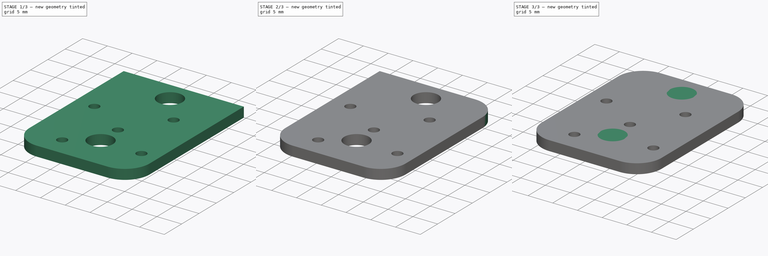
[diagram: build sequence overview — one tinted view per stage of 3, left to right]
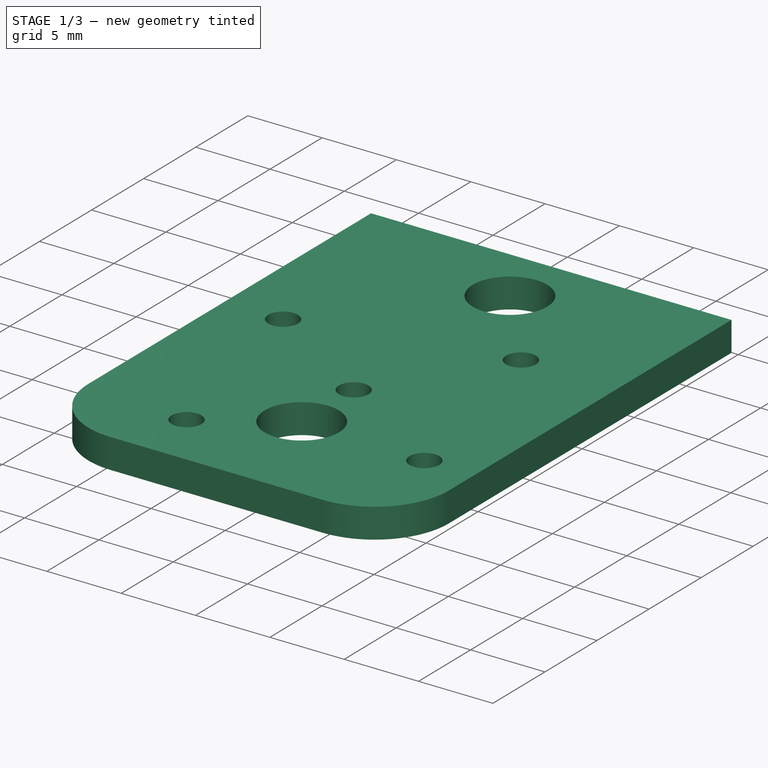
[diagram: stage 1 of 3 — iso view after this stage's code; geometry added in this stage tinted green]
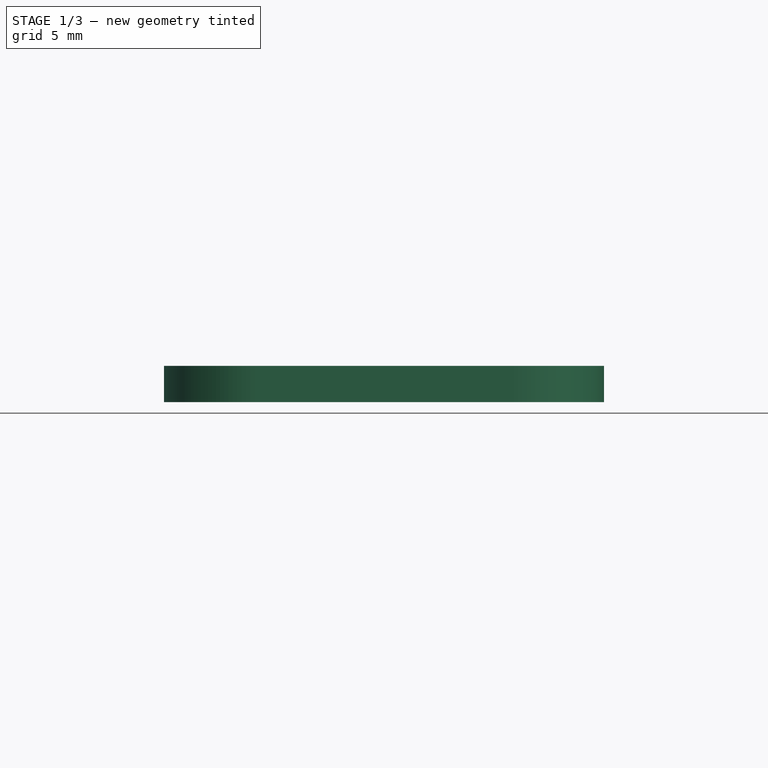
[diagram: stage 1 of 3 — front view after this stage's code; geometry added in this stage tinted green]
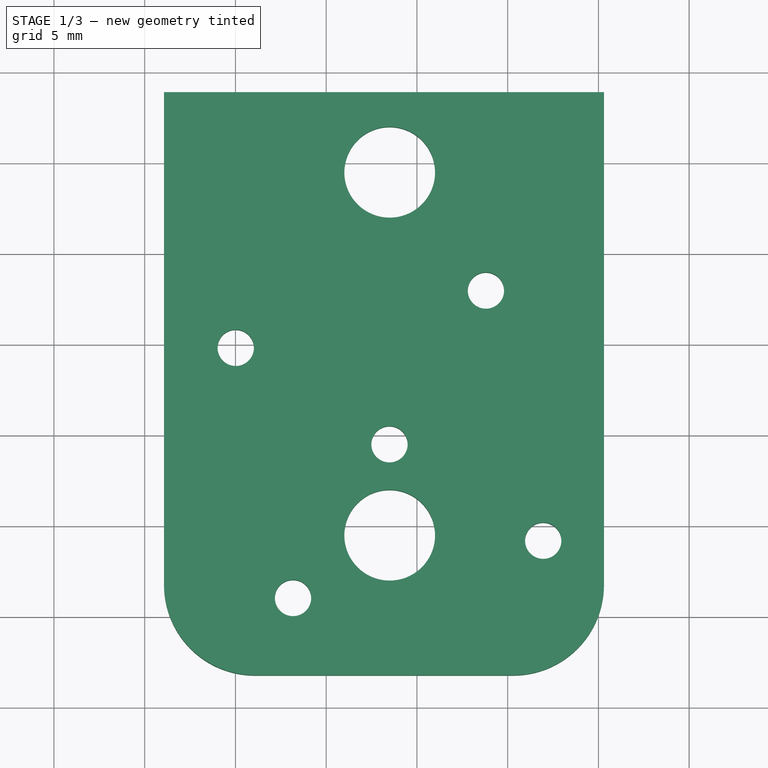
[diagram: stage 1 of 3 — top view after this stage's code; geometry added in this stage tinted green]
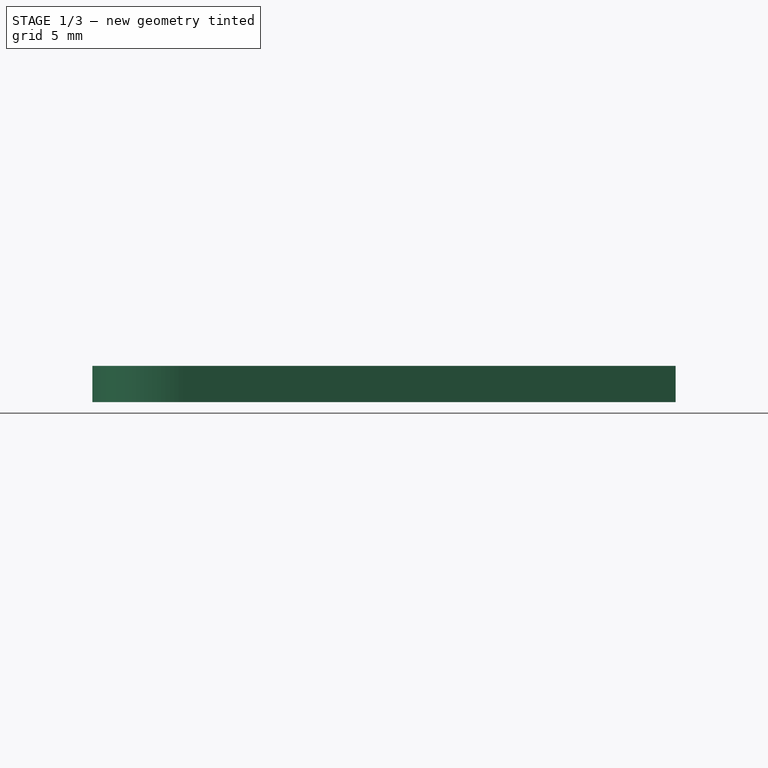
[diagram: stage 1 of 3 — right view after this stage's code; geometry added in this stage tinted green]
FCSTD DOCUMENT  (FreeCAD 0.19R24276 (Git))
Label: Bar_60x140__1_8mm_for_kern
License: All rights reserved
LicenseURL: http://en.wikipedia.org/wiki/All_rights_reserved
objects: Sketcher::SketchObject×3, PartDesign::Fillet×3, PartDesign::Pad×2, PartDesign::Body×1
note: 14 computed .brp shape members not serialized (recipe doc carries the construction recipe); baked Part::Feature solids carry a one-line shape summary decoded from their .brp

FEATURE [Sketcher::SketchObject] Sketch
  FullyConstrained = false
  MapMode = 5
  Support = -> [XY_Plane]
  sketch-geometry (48):
    g0: LineSegment StartX=0 StartY=0 StartZ=0 EndX=120 EndY=0 EndZ=0
    g1: LineSegment StartX=120 StartY=0 StartZ=0 EndX=120 EndY=80 EndZ=0
    g2: LineSegment StartX=120 StartY=80 StartZ=0 EndX=0 EndY=80 EndZ=0
    g3: LineSegment StartX=0 StartY=80 StartZ=0 EndX=0 EndY=0 EndZ=0
    g4: LineSegment StartX=0 StartY=4.5 StartZ=0 EndX=120 EndY=4.5 EndZ=0
    g5: LineSegment StartX=0 StartY=24.5 StartZ=0 EndX=120 EndY=24.5 EndZ=0
    g6: LineSegment StartX=0 StartY=44.5 StartZ=0 EndX=120 EndY=44.5 EndZ=0
    g7: LineSegment StartX=0 StartY=64.5 StartZ=0 EndX=120 EndY=64.5 EndZ=0
    g8: LineSegment StartX=48.5 StartY=0 StartZ=0 EndX=48.5 EndY=4.5 EndZ=0
    g9: LineSegment StartX=68.5 StartY=0 StartZ=0 EndX=68.5 EndY=4.5 EndZ=0
    g10: LineSegment StartX=88.5 StartY=0 StartZ=0 EndX=88.5 EndY=4.5 EndZ=0
    g11: LineSegment StartX=108.5 StartY=0 StartZ=0 EndX=108.5 EndY=4.5 EndZ=0
    g12: LineSegment StartX=0 StartY=14.5 StartZ=0 EndX=120 EndY=14.5 EndZ=0
    g13: LineSegment StartX=0 StartY=34.5 StartZ=0 EndX=120 EndY=34.5 EndZ=0
    g14: LineSegment StartX=0 StartY=54.5 StartZ=0 EndX=120 EndY=54.5 EndZ=0
    g15: LineSegment StartX=0 StartY=74.5 StartZ=0 EndX=120 EndY=74.5 EndZ=0
    g16: LineSegment StartX=48.5 StartY=24.5 StartZ=0 EndX=48.5 EndY=80 EndZ=0
    g17: LineSegment StartX=68.5 StartY=14.5 StartZ=0 EndX=68.5 EndY=80 EndZ=0
    g18: LineSegment StartX=88.5 StartY=24.5 StartZ=0 EndX=88.5 EndY=80 EndZ=0
    g19: LineSegment StartX=108.5 StartY=14.5 StartZ=0 EndX=108.5 EndY=80 EndZ=0
    g20: Circle CenterX=28.5 CenterY=14.5 CenterZ=0 NormalX=0 NormalY=0 NormalZ=1 AngleXU=0 Radius=2.5
    g21: Circle CenterX=108.5 CenterY=14.5 CenterZ=0 NormalX=0 NormalY=0 NormalZ=1 AngleXU=0 Radius=2.5
    g22: Circle CenterX=8.5 CenterY=24.5 CenterZ=0 NormalX=0 NormalY=0 NormalZ=1 AngleXU=0 Radius=2.5
    g23: Circle CenterX=48.5 CenterY=24.5 CenterZ=0 NormalX=0 NormalY=0 NormalZ=1 AngleXU=0 Radius=2.5
    g24: Circle CenterX=88.5 CenterY=24.5 CenterZ=0 NormalX=0 NormalY=0 NormalZ=1 AngleXU=0 Radius=2.5
    g25: Circle CenterX=8.5 CenterY=44.5 CenterZ=0 NormalX=0 NormalY=0 NormalZ=1 AngleXU=0 Radius=2.5
    g26: Circle CenterX=48.5 CenterY=44.5 CenterZ=0 NormalX=0 NormalY=0 NormalZ=1 AngleXU=0 Radius=2.5
    g27: Circle CenterX=88.5 CenterY=44.5 CenterZ=0 NormalX=0 NormalY=0 NormalZ=1 AngleXU=0 Radius=2.5
    g28: Circle CenterX=28.5 CenterY=54.5 CenterZ=0 NormalX=0 NormalY=0 NormalZ=1 AngleXU=0 Radius=2.5
    g29: Circle CenterX=68.5 CenterY=54.5 CenterZ=0 NormalX=0 NormalY=0 NormalZ=1 AngleXU=0 Radius=2.5
    g30: Circle CenterX=108.5 CenterY=54.5 CenterZ=0 NormalX=0 NormalY=0 NormalZ=1 AngleXU=0 Radius=2.5
    g31: Circle CenterX=88.5 CenterY=64.5 CenterZ=0 NormalX=0 NormalY=0 NormalZ=1 AngleXU=0 Radius=2.5
    g32: Circle CenterX=48.5 CenterY=64.5 CenterZ=0 NormalX=0 NormalY=0 NormalZ=1 AngleXU=0 Radius=2.5
    g33: Circle CenterX=8.5 CenterY=64.5 CenterZ=0 NormalX=0 NormalY=0 NormalZ=1 AngleXU=0 Radius=2.5
    g34: Circle CenterX=28.5 CenterY=34.5 CenterZ=0 NormalX=0 NormalY=0 NormalZ=1 AngleXU=0 Radius=2.5
    g35: Circle CenterX=68.5 CenterY=34.5 CenterZ=0 NormalX=0 NormalY=0 NormalZ=1 AngleXU=0 Radius=2.5
    g36: Circle CenterX=108.5 CenterY=34.5 CenterZ=0 NormalX=0 NormalY=0 NormalZ=1 AngleXU=0 Radius=2.5
    g37: LineSegment StartX=28.5 StartY=74.5 StartZ=0 EndX=28.5 EndY=14.5 EndZ=0
    g38: LineSegment StartX=8.5 StartY=4.5 StartZ=0 EndX=8.5 EndY=24.5 EndZ=0
    g39: Circle CenterX=68.5 CenterY=14.5 CenterZ=0 NormalX=0 NormalY=0 NormalZ=1 AngleXU=0 Radius=2.5
    g40: LineSegment StartX=-1.5 StartY=9.5 StartZ=0 EndX=138.5 EndY=9.5 EndZ=0
    g41: LineSegment StartX=-1.5 StartY=69.5 StartZ=0 EndX=138.5 EndY=69.5 EndZ=0
    g42: LineSegment StartX=-1.5 StartY=69.5 StartZ=0 EndX=-1.5 EndY=9.5 EndZ=0
    g43: LineSegment StartX=138.5 StartY=69.5 StartZ=0 EndX=138.5 EndY=9.5 EndZ=0
    g44: Circle CenterX=128.5 CenterY=24.5 CenterZ=0 NormalX=0 NormalY=0 NormalZ=1 AngleXU=0 Radius=2.5
    g45: Circle CenterX=128.5 CenterY=44.5 CenterZ=0 NormalX=0 NormalY=0 NormalZ=1 AngleXU=0 Radius=2.5
    g46: Circle CenterX=128.5 CenterY=64.5 CenterZ=0 NormalX=0 NormalY=0 NormalZ=1 AngleXU=0 Radius=2.5
    g47: Circle CenterX=68.5 CenterY=39.5 CenterZ=0 NormalX=0 NormalY=0 NormalZ=1 AngleXU=0 Radius=1.5
  constraints (103):
    c: Coincident(g0,g1)
    c: Coincident(g1,g2)
    c: Coincident(g2,g3)
    c: Coincident(g3,g0)
    c: Horizontal(g0)
    c: Horizontal(g2)
    c: Vertical(g1)
    c: Vertical(g3)
    c: Coincident(g0,g-1)
    c: DistanceX(g0,g0) = 120
    c: DistanceY(g3,g3) = 80
    c: Horizontal(g4)
    c: PointOnObject(g4,g3)
    c: PointOnObject(g4,g1)
    c: Horizontal(g5)
    c: PointOnObject(g5,g3)
    c: PointOnObject(g5,g1)
    c: DistanceY(g4,g5) = 20
    c: Horizontal(g6)
    c: PointOnObject(g6,g1)
    c: PointOnObject(g6,g3)
    c: DistanceY(g5,g6) = 20
    c: Horizontal(g7)
    c: PointOnObject(g7,g1)
    c: PointOnObject(g7,g3)
    c: DistanceY(g6,g7) = 20
    c: Vertical(g8)
    c: Vertical(g9)
    c: Vertical(g10)
    c: Vertical(g11)
    c: PointOnObject(g8,g0)
    c: PointOnObject(g9,g0)
    c: PointOnObject(g10,g0)
    c: PointOnObject(g11,g0)
    c: PointOnObject(g19,g2)
    c: PointOnObject(g18,g2)
    c: PointOnObject(g17,g2)
    c: PointOnObject(g16,g2)
    c: DistanceX(g8,g9) = 20
    c: DistanceX(g9,g10) = 20
    c: DistanceX(g10,g11) = 20
    c: Horizontal(g12)
    c: Horizontal(g13)
    c: Horizontal(g14)
    c: Horizontal(g15)
    c: PointOnObject(g12,g3)
    c: PointOnObject(g13,g3)
    c: PointOnObject(g14,g3)
    c: PointOnObject(g15,g3)
    c: PointOnObject(g15,g1)
    c: PointOnObject(g14,g1)
    c: PointOnObject(g13,g1)
    c: PointOnObject(g12,g1)
    c: DistanceY(g0,g12) = 14.5
    c: DistanceY(g12,g13) = 20
    c: DistanceY(g13,g14) = 20
    c: DistanceY(g14,g15) = 20
    c: PointOnObject(g20,g12)
    c: PointOnObject(g8,g4)
    c: Tangent(g8,g16)
    c: PointOnObject(g9,g4)
    c: PointOnObject(g17,g12)
    c: Tangent(g9,g17)
    c: PointOnObject(g10,g4)
    c: Tangent(g10,g18)
    c: PointOnObject(g11,g4)
    c: PointOnObject(g19,g12)
    c: Tangent(g11,g19)
    c: Coincident(g21,g19)
    c: Diameter(g20) = 5
    c: PointOnObject(g16,g5)
    c: PointOnObject(g18,g5)
    c: Equal(g23,g24)
    c: Equal(g33,g28)
    c: Equal(g28,g32)
    c: Equal(g32,g31)
    c: Equal(g31,g30)
    c: Diameter(g28) = 5
    c: Equal(g31,g29)
    c: Equal(g26,g27)
    c: Diameter(g34) = 5
    c: Coincident(g37,g20)
    c: Vertical(g37)
    c: DistanceY(g0,g4) = 4.5
    c: Coincident(g38,g22)
    c: Vertical(g38)
    c: Coincident(g39,g17)
    c: Equal(g21,g39)
    c: Horizontal(g40)
    c: Horizontal(g41)
    c: Vertical(g42)
    c: DistanceX(g0,g38) = 8.5
    c: Coincident(g42,g40)
    c: Coincident(g41,g42)
    c: Vertical(g43)
    c: DistanceX(g40,g38) = 10
    c: Coincident(g40,g43)
    c: DistanceY(g40,g21) = 5
    c: Coincident(g41,g43)
    c: DistanceY(g40,g41) = 60
    c: Symmetric(g40,g41,g47)
    c: Diameter(g47) = 3
    c: DistanceX(g41,g41) = 140
FEATURE [Sketcher::SketchObject] Sketch001
  FullyConstrained = false
  MapMode = 5
  Placement = pos=(0,0,1.8) rot=(0,0,1;0rad)
  sketch-geometry (18):
    g0: Circle CenterX=68.4882 CenterY=39.5 CenterZ=0 NormalX=0 NormalY=0 NormalZ=1 AngleXU=0 Radius=1
    g1: LineSegment StartX=73.8024 StartY=47.9711 StartZ=0 EndX=60.0171 EndY=44.8142 EndZ=0
    g2: LineSegment StartX=60.0171 StartY=44.8142 StartZ=0 EndX=63.1739 EndY=31.0289 EndZ=0
    g3: LineSegment StartX=63.1739 StartY=31.0289 StartZ=0 EndX=76.9592 EndY=34.1858 EndZ=0
    g4: LineSegment StartX=76.9592 StartY=34.1858 StartZ=0 EndX=73.8024 EndY=47.9711 EndZ=0
    g5: Circle CenterX=68.4882 CenterY=39.5 CenterZ=0 NormalX=0 NormalY=0 NormalZ=1 AngleXU=0 Radius=10
    g6: LineSegment StartX=60.0171 StartY=44.8142 StartZ=0 EndX=76.9592 EndY=34.1858 EndZ=0
    g7: Circle CenterX=73.8024 CenterY=47.9711 CenterZ=0 NormalX=0 NormalY=0 NormalZ=1 AngleXU=0 Radius=1
    g8: Circle CenterX=60.0171 CenterY=44.8142 CenterZ=0 NormalX=0 NormalY=0 NormalZ=1 AngleXU=0 Radius=1
    g9: Circle CenterX=63.1739 CenterY=31.0289 CenterZ=0 NormalX=0 NormalY=0 NormalZ=1 AngleXU=0 Radius=1
    g10: Circle CenterX=76.9592 CenterY=34.1858 CenterZ=0 NormalX=0 NormalY=0 NormalZ=1 AngleXU=0 Radius=1
    g11: Circle CenterX=68.4998 CenterY=34.489 CenterZ=0 NormalX=0 NormalY=0 NormalZ=1 AngleXU=0 Radius=2.5
    g12: LineSegment StartX=56.0652 StartY=58.9033 StartZ=0 EndX=80.307 EndY=58.9033 EndZ=0
    g13: LineSegment StartX=80.307 StartY=58.9033 StartZ=0 EndX=80.307 EndY=26.7715 EndZ=0
    g14: LineSegment StartX=80.307 StartY=26.7715 StartZ=0 EndX=56.0652 EndY=26.7715 EndZ=0
    g15: LineSegment StartX=56.0652 StartY=26.7715 StartZ=0 EndX=56.0652 EndY=58.9033 EndZ=0
    g16: Circle CenterX=68.4998 CenterY=54.489 CenterZ=0 NormalX=0 NormalY=0 NormalZ=1 AngleXU=0 Radius=2.5
    g17: LineSegment StartX=68.4998 StartY=34.489 StartZ=0 EndX=68.4998 EndY=54.489 EndZ=0
  constraints (39):
    c: DistanceY(g-1,g0) = 39.5
    c: Coincident(g1,g2)
    c: Coincident(g2,g3)
    c: Coincident(g3,g4)
    c: Coincident(g4,g1)
    c: Equal(g1,g2)
    c: Equal(g1,g3)
    c: Equal(g1,g4)
    c: PointOnObject(g1,g5)
    c: PointOnObject(g2,g5)
    c: PointOnObject(g3,g5)
    c: PointOnObject(g4,g5)
    c: Coincident(g5,g0)
    c: Diameter(g5) = 20
    c: Coincident(g6,g1)
    c: Coincident(g6,g3)
    c: Coincident(g7,g1)
    c: Coincident(g8,g1)
    c: Coincident(g9,g2)
    c: Coincident(g10,g3)
    c: Diameter(g7) = 2
    c: Equal(g7,g8)
    c: Equal(g7,g9)
    c: Equal(g7,g10)
    c: Diameter(g0) = 2
    c: Diameter(g11) = 5
    c: Coincident(g12,g13)
    c: Coincident(g13,g14)
    c: Coincident(g14,g15)
    c: Coincident(g15,g12)
    c: Horizontal(g12)
    c: Horizontal(g14)
    c: Vertical(g13)
    c: Vertical(g15)
    c: Equal(g16,g11)
    c: DistanceY(g11,g16) = 20
    c: Coincident(g17,g16)
    c: Vertical(g17)
    c: Coincident(g17,g11)
FEATURE [PartDesign::Pad] Pad
  Direction = (1,1,1)
  Length = 2
  Length2 = 100
  Placement = pos=(0,0,1.8) rot=(0,0,1;0rad)
  Profile = -> Sketch001
  Type = 0
FEATURE [PartDesign::Fillet] Fillet
  Base = -> Pad [Edge8,Edge5]
  BaseFeature = -> Pad
  Placement = pos=(0,0,1.8) rot=(0,0,1;0rad)
  Radius = 5
  SupportTransform = false
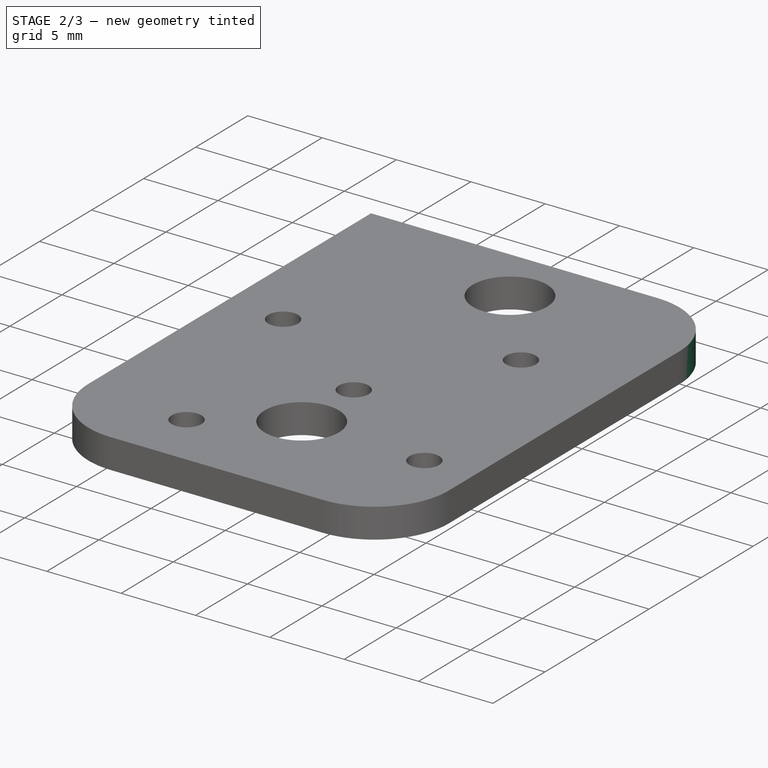
[diagram: stage 2 of 3 — iso view after this stage's code; geometry added in this stage tinted green]
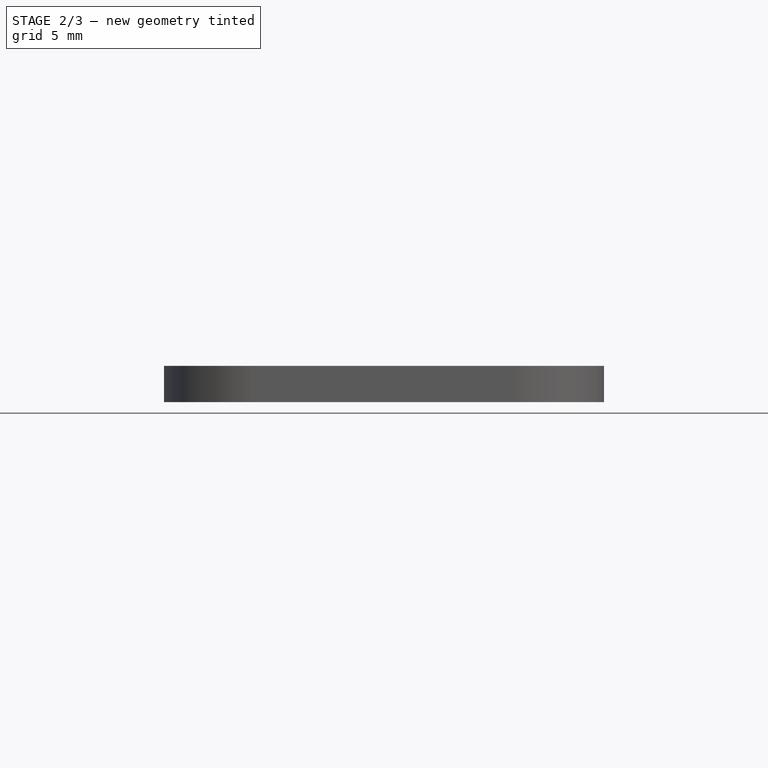
[diagram: stage 2 of 3 — front view after this stage's code; geometry added in this stage tinted green]
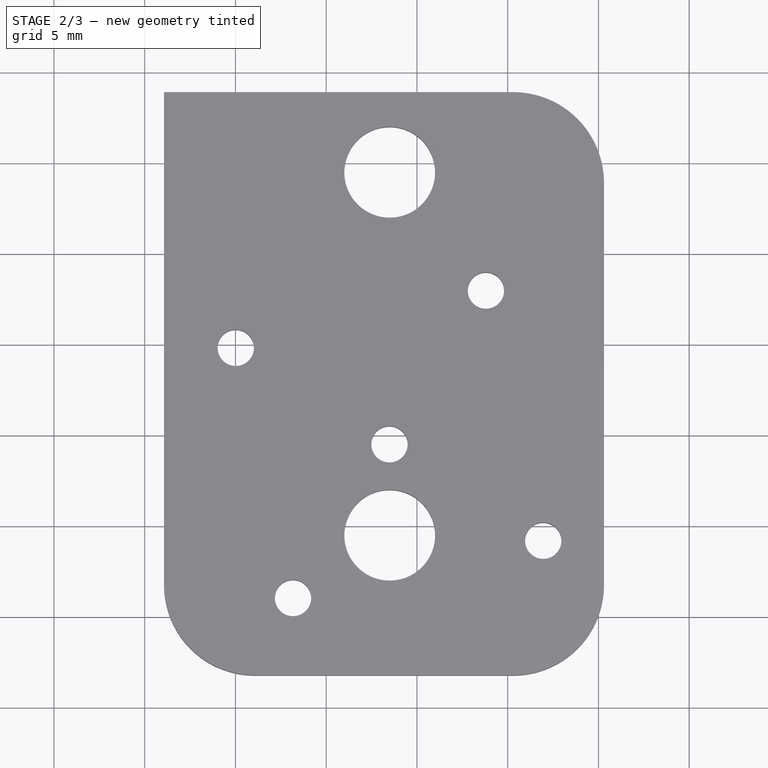
[diagram: stage 2 of 3 — top view after this stage's code; geometry added in this stage tinted green]
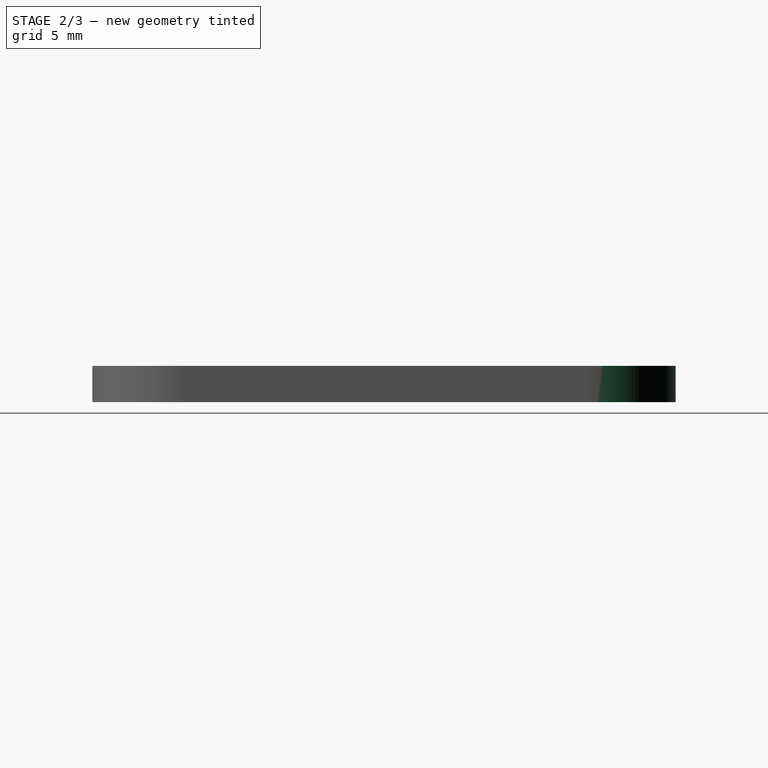
[diagram: stage 2 of 3 — right view after this stage's code; geometry added in this stage tinted green]
FEATURE [PartDesign::Fillet] Fillet001
  Base = -> Fillet [Edge3,Edge17]
  BaseFeature = -> Fillet
  Placement = pos=(0,0,1.8) rot=(0,0,1;0rad)
  Radius = 5
  SupportTransform = false
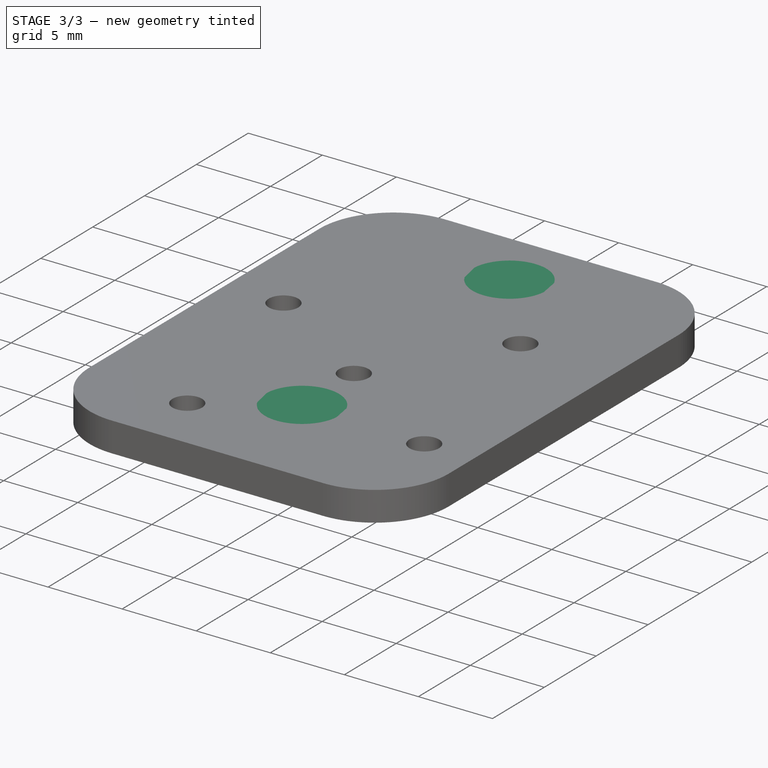
[diagram: stage 3 of 3 — iso view after this stage's code; geometry added in this stage tinted green]
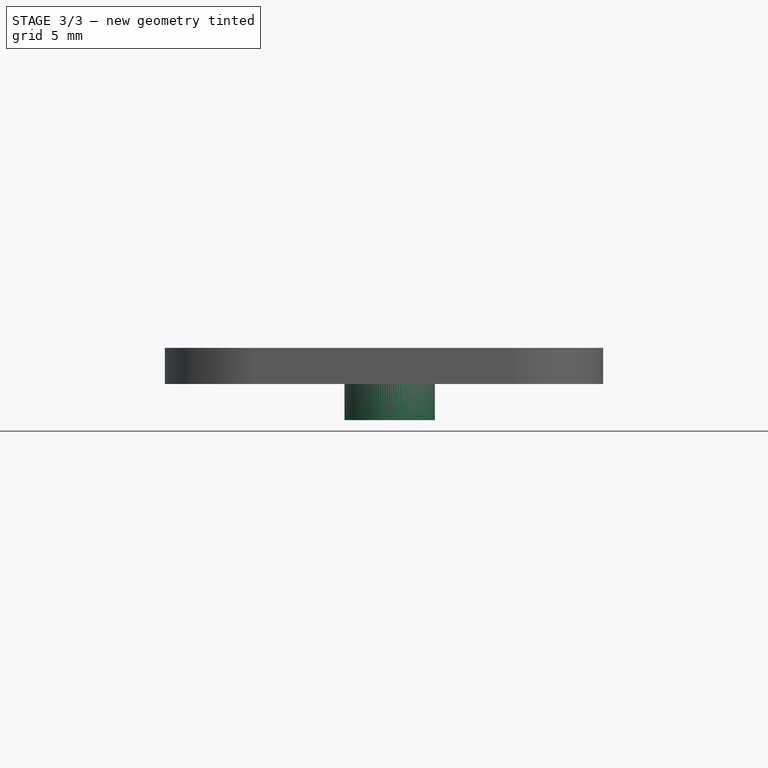
[diagram: stage 3 of 3 — front view after this stage's code; geometry added in this stage tinted green]
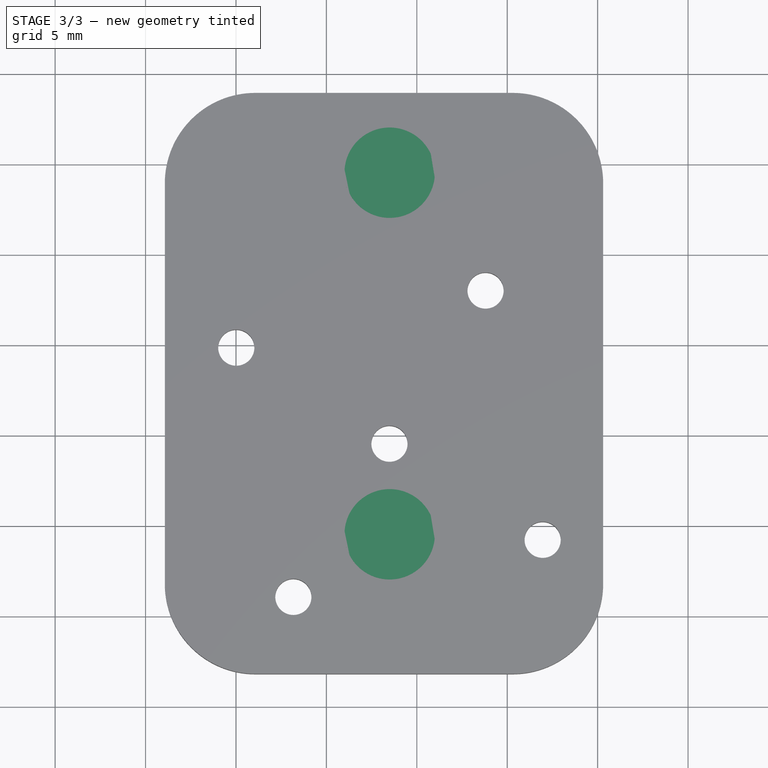
[diagram: stage 3 of 3 — top view after this stage's code; geometry added in this stage tinted green]
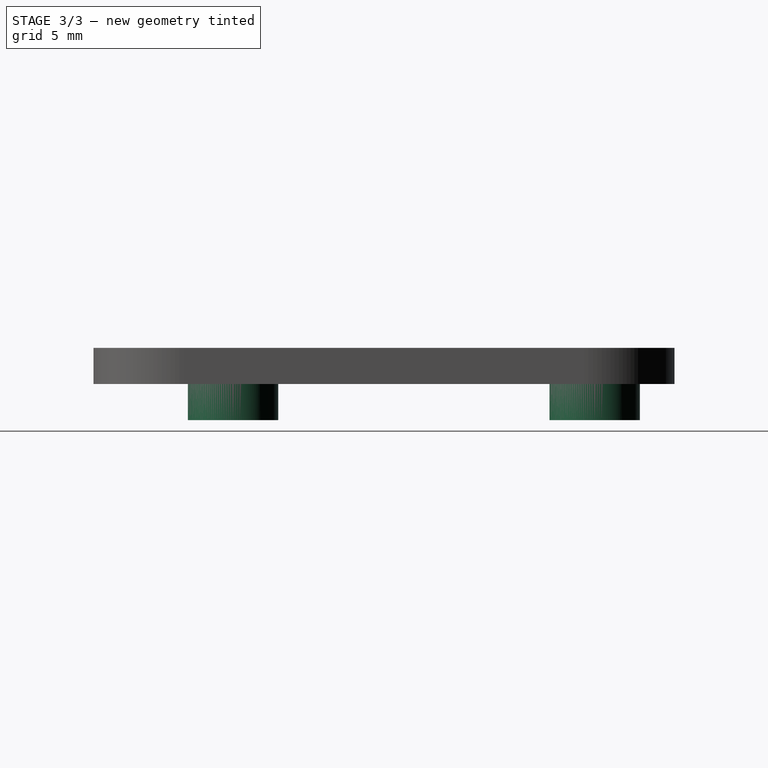
[diagram: stage 3 of 3 — right view after this stage's code; geometry added in this stage tinted green]
FEATURE [Sketcher::SketchObject] Sketch002
  FullyConstrained = false
  MapMode = 5
  Placement = pos=(0,0,3.8) rot=(0,0,1;0rad)
  Support = -> [Fillet001]
  sketch-geometry (3):
    g0: Circle CenterX=68.4995 CenterY=54.4906 CenterZ=0 NormalX=0 NormalY=0 NormalZ=1 AngleXU=0 Radius=2.5
    g1: Circle CenterX=68.4995 CenterY=34.4906 CenterZ=0 NormalX=0 NormalY=0 NormalZ=1 AngleXU=0 Radius=2.5
    g2: LineSegment StartX=68.4995 StartY=34.4906 StartZ=0 EndX=68.4995 EndY=54.4906 EndZ=0
  constraints (6):
    c: Diameter(g0) = 5
    c: Equal(g0,g1)
    c: Coincident(g2,g1)
    c: Coincident(g2,g0)
    c: Vertical(g2)
    c: DistanceY(g2,g2) = 20
FEATURE [PartDesign::Pad] Pad001
  BaseFeature = -> Fillet001
  Direction = (1,1,1)
  Length = 4
  Length2 = 100
  Placement = pos=(0,0,1.8) rot=(0,0,1;0rad)
  Profile = -> Sketch002
  Reversed = true
  Type = 0
FEATURE [PartDesign::Fillet] Fillet002
  Base = -> Pad001 [Edge41]
  BaseFeature = -> Pad001
  Placement = pos=(0,0,1.8) rot=(0,0,1;0rad)
  Radius = 5
  SupportTransform = false
FEATURE [PartDesign::Body] Body
  Group = -> [Sketch,Sketch001,Pad,Fillet,Fillet001,Sketch002,Pad001,Fillet002]
  Origin = -> Origin
  Tip = -> Fillet002
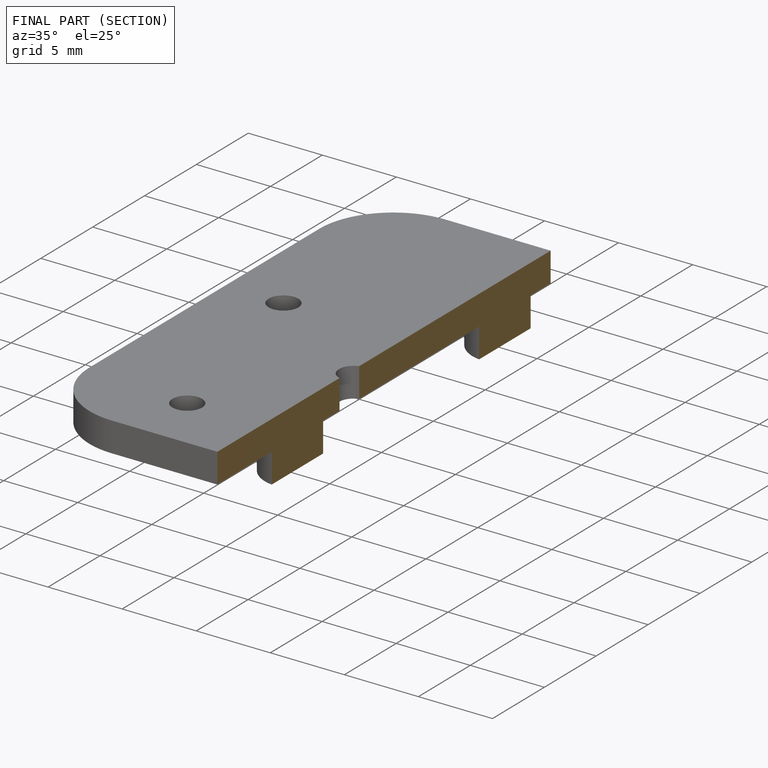
[diagram: finished part — half-section view (interior)]
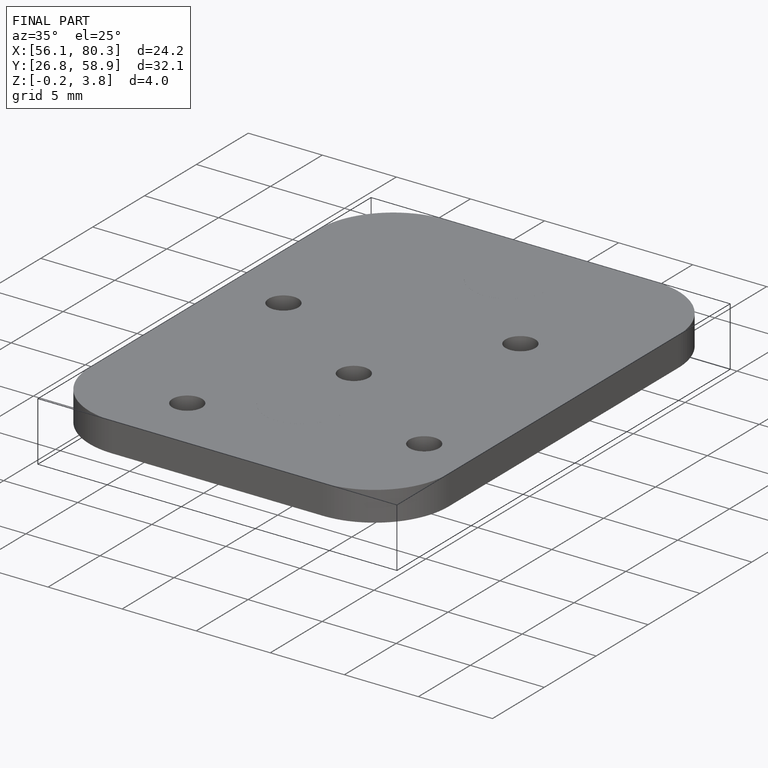
[diagram: finished part — iso view with bounding-box wireframe]
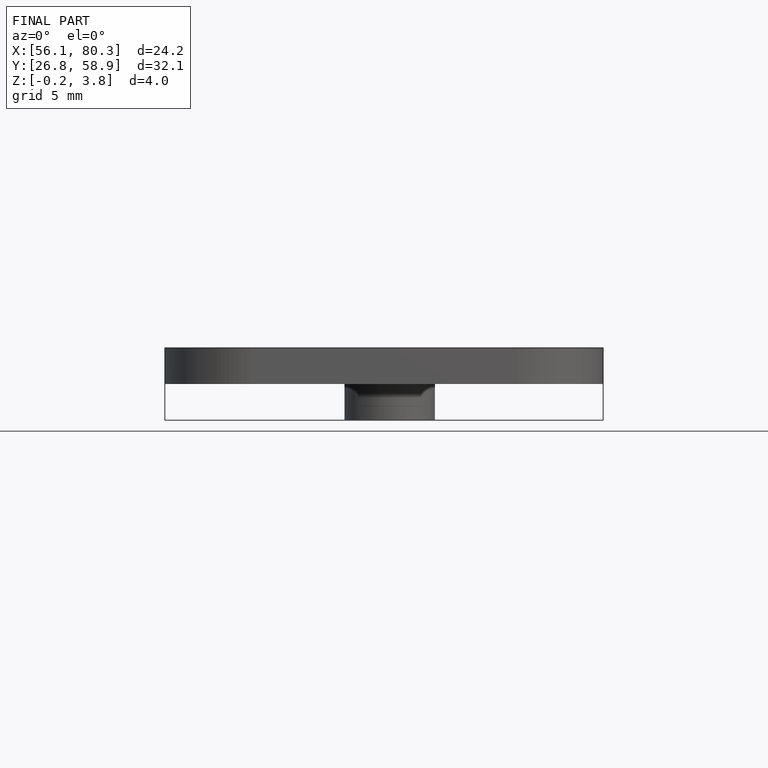
[diagram: finished part — front view with bounding-box wireframe]
